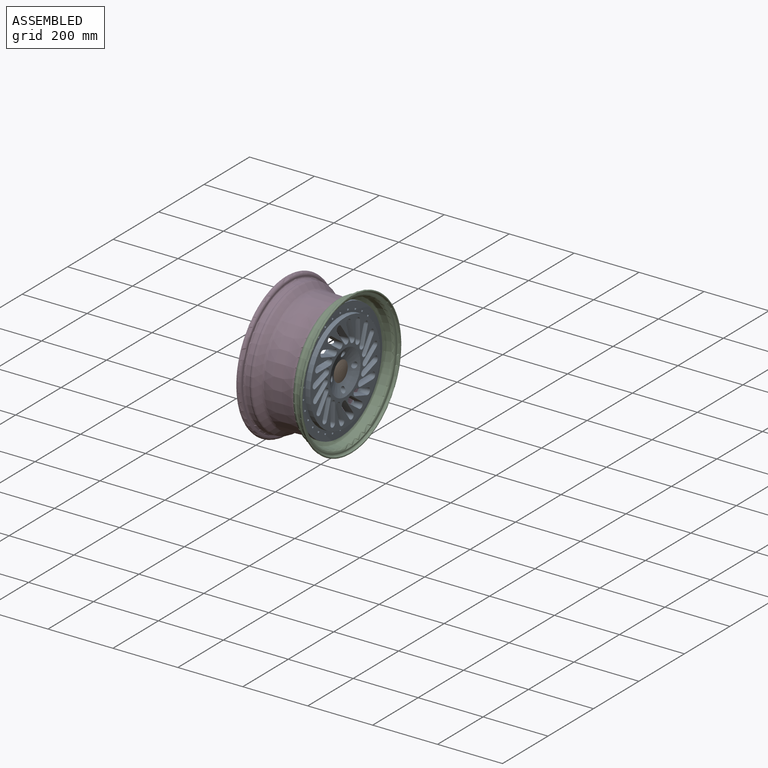
[diagram: assembled view]
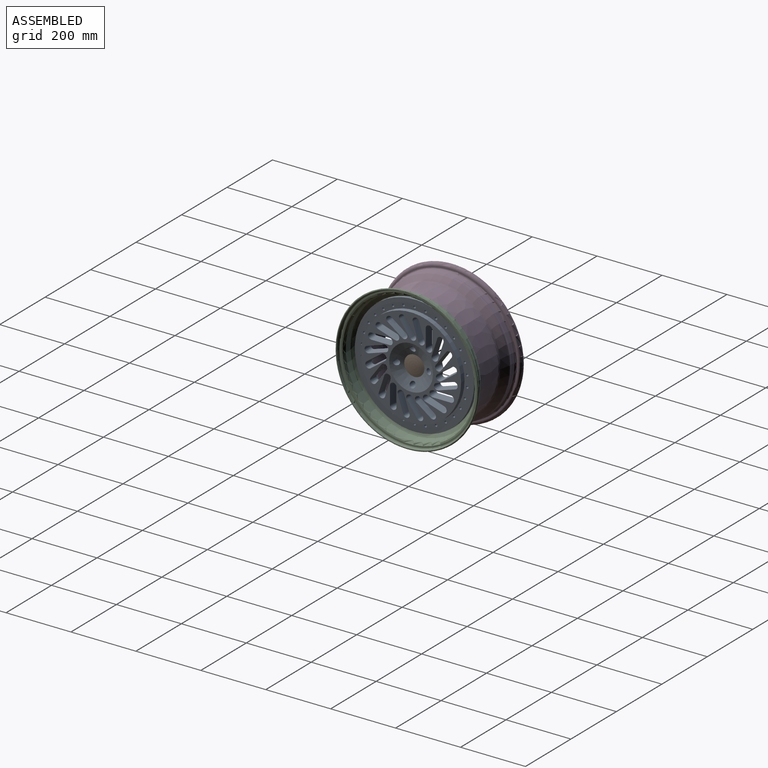
[diagram: assembled view, second angle]
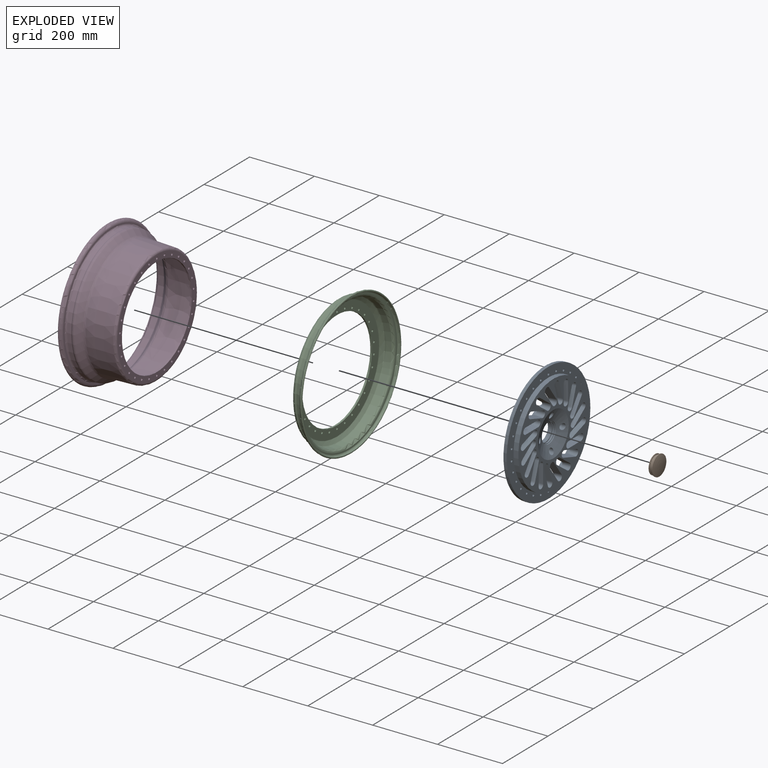
[diagram: exploded view]
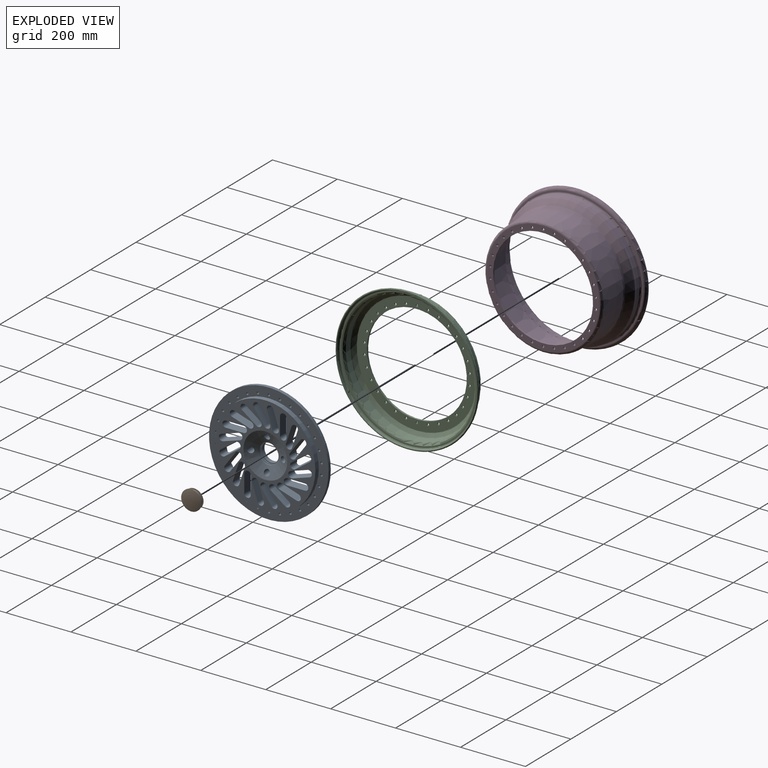
[diagram: exploded view, second angle]
ASSEMBLY  parts=4 mates=3
PART A: 144 faces, bbox 368x37x368 mm
  f0: plane 308x308mm, normal (0,1,0), area 31737mm2, adj f2,f5,f64,f65,f66,f67,f68,f69
  f1: plane 290x290mm, normal (0,-1,0), area 26986.4mm2, adj f12,f13,f64,f65,f66,f67,f68,f69
  f2: cone r=31mm half-angle=69deg, axis (0,1,0), area 11006.6mm2, adj f0,f4,f52,f55,f58,f61
  f3: torus R=30mm, axis (0,1,0), area 302.4mm2, adj f4,f21
  f4: cylinder r=31mm len=62mm, axis (0,1,0), area 389.6mm2, adj f2,f3
  f5: cylinder r=154mm len=308mm, axis (0,1,0), area 14514.2mm2, adj f0,f6
  f6: plane 368x368mm, normal (0,1,0), area 30634.3mm2, adj f5,f7,f22,f23,f24,f25,f26,f27
  f7: cylinder r=184mm len=368mm, axis (0,1,0), area 11561.1mm2, adj f6,f8
  f8: plane 368x368mm, normal (0,-1,0), area 30634.3mm2, adj f7,f9,f22,f23,f24,f25,f26,f27
  f9: cylinder r=154mm len=308mm, axis (0,1,0), area 11417.8mm2, adj f8,f10
  f10: plane 308x308mm, normal (0,-1,0), area 5692.6mm2, adj f9,f11
  f11: cylinder r=148mm len=296mm, axis (0,1,0), area 8183.2mm2, adj f10,f12
  f12: torus R=145mm, axis (0,1,0), area 4349.8mm2, adj f1,f11
  f13: torus R=75.5mm, axis (0,1,0), area 2178.9mm2, adj f1,f14
  f14: cylinder r=72.5mm len=145mm, axis (0,1,0), area 4099.8mm2, adj f13,f15
  f15: plane 145x145mm, normal (0,-1,0), area 13367.2mm2, adj f14,f16,f54,f57,f60,f63
  f16: cylinder r=28.85mm len=57.7mm, axis (0,1,0), area 2247.7mm2, adj f15,f17
  f17: plane 62.9x62.9mm, normal (0,1,0), area 492.5mm2, adj f16,f18
  f18: cylinder r=31.45mm len=62.9mm, axis (0,1,0), area 1027.6mm2, adj f17,f19
  f19: plane 62.9x62.9mm, normal (0,-1,0), area 492.5mm2, adj f18,f20
  f20: cylinder r=28.85mm len=57.7mm, axis (0,1,0), area 435mm2, adj f19,f21
  f21: plane 60x60mm, normal (0,1,0), area 212.6mm2, adj f3,f20
  f22: cylinder r=3.6mm len=10mm, axis (0,-1,0), area 226.2mm2, adj f6,f8
  f23: cylinder r=3.6mm len=10mm, axis (0,-1,0), area 226.2mm2, adj f6,f8
  f24: cylinder r=3.6mm len=10mm, axis (0,-1,0), area 226.2mm2, adj f6,f8
  f25: cylinder r=3.6mm len=10mm, axis (0,-1,0), area 226.2mm2, adj f6,f8
  f26: cylinder r=3.6mm len=10mm, axis (0,-1,0), area 226.2mm2, adj f6,f8
  f27: cylinder r=3.6mm len=10mm, axis (0,-1,0), area 226.2mm2, adj f6,f8
  f28: cylinder r=3.6mm len=10mm, axis (0,-1,0), area 226.2mm2, adj f6,f8
  f29: cylinder r=3.6mm len=10mm, axis (0,-1,0), area 226.2mm2, adj f6,f8
  f30: cylinder r=3.6mm len=10mm, axis (0,-1,0), area 226.2mm2, adj f6,f8
  f31: cylinder r=3.6mm len=10mm, axis (0,-1,0), area 226.2mm2, adj f6,f8
  f32: cylinder r=3.6mm len=10mm, axis (0,-1,0), area 226.2mm2, adj f6,f8
  f33: cylinder r=3.6mm len=10mm, axis (0,-1,0), area 226.2mm2, adj f6,f8
  f34: cylinder r=3.6mm len=10mm, axis (0,-1,0), area 226.2mm2, adj f6,f8
  f35: cylinder r=3.6mm len=10mm, axis (0,-1,0), area 226.2mm2, adj f6,f8
  f36: cylinder r=3.6mm len=10mm, axis (0,-1,0), area 226.2mm2, adj f6,f8
  f37: cylinder r=3.6mm len=10mm, axis (0,-1,0), area 226.2mm2, adj f6,f8
  f38: cylinder r=3.6mm len=10mm, axis (0,-1,0), area 226.2mm2, adj f6,f8
  f39: cylinder r=3.6mm len=10mm, axis (0,-1,0), area 226.2mm2, adj f6,f8
  f40: cylinder r=3.6mm len=10mm, axis (0,-1,0), area 226.2mm2, adj f6,f8
  f41: cylinder r=3.6mm len=10mm, axis (0,-1,0), area 226.2mm2, adj f6,f8
  f42: cylinder r=3.6mm len=10mm, axis (0,-1,0), area 226.2mm2, adj f6,f8
  f43: cylinder r=3.6mm len=10mm, axis (0,-1,0), area 226.2mm2, adj f6,f8
  f44: cylinder r=3.6mm len=10mm, axis (0,-1,0), area 226.2mm2, adj f6,f8
  f45: cylinder r=3.6mm len=10mm, axis (0,-1,0), area 226.2mm2, adj f6,f8
  f46: cylinder r=3.6mm len=10mm, axis (0,-1,0), area 226.2mm2, adj f6,f8
  f47: cylinder r=3.6mm len=10mm, axis (0,-1,0), area 226.2mm2, adj f6,f8
  f48: cylinder r=3.6mm len=10mm, axis (0,-1,0), area 226.2mm2, adj f6,f8
  f49: cylinder r=3.6mm len=10mm, axis (0,-1,0), area 226.2mm2, adj f6,f8
  f50: cylinder r=3.6mm len=10mm, axis (0,-1,0), area 226.2mm2, adj f6,f8
  f51: cylinder r=3.6mm len=10mm, axis (0,-1,0), area 226.2mm2, adj f6,f8
  f52: cylinder r=9mm len=23.41mm, axis (0,1,0), area 1137.4mm2, adj f2,f53
  f53: cone r=6.5mm half-angle=30deg, axis (0,1,0), area 243.5mm2, adj f52,f54
  f54: cylinder r=6.5mm len=13mm, axis (0,1,0), area 245mm2, adj f15,f53
  f55: cylinder r=9mm len=23.41mm, axis (0,1,0), area 1137.4mm2, adj f2,f56
  f56: cone r=6.5mm half-angle=30deg, axis (0,1,0), area 243.5mm2, adj f55,f57
  f57: cylinder r=6.5mm len=13mm, axis (0,1,0), area 245mm2, adj f15,f56
  f58: cylinder r=9mm len=23.41mm, axis (0,1,0), area 1137.4mm2, adj f2,f59
  f59: cone r=6.5mm half-angle=30deg, axis (0,1,0), area 243.5mm2, adj f58,f60
  f60: cylinder r=6.5mm len=13mm, axis (0,1,0), area 245mm2, adj f15,f59
  f61: cylinder r=9mm len=23.41mm, axis (0,1,0), area 1137.4mm2, adj f2,f62
  f62: cone r=6.5mm half-angle=30deg, axis (0,1,0), area 243.5mm2, adj f61,f63
  f63: cylinder r=6.5mm len=13mm, axis (0,1,0), area 245mm2, adj f15,f62
  f64: plane 55.43x25mm, normal (-1,0.09,0), area 1391mm2, adj f0,f1,f65,f67
  f65: cone r=10mm half-angle=5deg, axis (0,1,0), area 702.2mm2, adj f0,f1,f64,f66
  f66: plane 55.43x25mm, normal (1,0.09,0), area 1391mm2, adj f0,f1,f65,f67
  f67: cone r=10mm half-angle=5deg, axis (0,1,0), area 702.2mm2, adj f0,f1,f64,f66
  f68: plane 53.39x25mm, normal (-0.95,0.09,0.31), area 1391mm2, adj f0,f1,f69,f71
  f69: cone r=10mm half-angle=5deg, axis (0,1,0), area 702.2mm2, adj f0,f1,f68,f70
  f70: plane 53.39x25mm, normal (0.95,0.09,-0.31), area 1391mm2, adj f0,f1,f69,f71
  f71: cone r=10mm half-angle=5deg, axis (0,1,0), area 702.2mm2, adj f0,f1,f68,f70
  f72: plane 46.13x34.35mm, normal (-0.81,0.09,0.59), area 1391mm2, adj f0,f1,f73,f75
  f73: cone r=10mm half-angle=5deg, axis (0,1,0), area 702.2mm2, adj f0,f1,f72,f74
  f74: plane 46.13x34.35mm, normal (0.81,0.09,-0.59), area 1391mm2, adj f0,f1,f73,f75
  f75: cone r=10mm half-angle=5deg, axis (0,1,0), area 702.2mm2, adj f0,f1,f72,f74
  f76: plane 46.13x34.35mm, normal (-0.59,0.09,0.81), area 1391mm2, adj f0,f1,f77,f79
  f77: cone r=10mm half-angle=5deg, axis (0,1,0), area 702.2mm2, adj f0,f1,f76,f78
  f78: plane 46.13x34.35mm, normal (0.59,0.09,-0.81), area 1391mm2, adj f0,f1,f77,f79
  f79: cone r=10mm half-angle=5deg, axis (0,1,0), area 702.2mm2, adj f0,f1,f76,f78
  f80: plane 53.39x25mm, normal (-0.31,0.09,0.95), area 1391mm2, adj f0,f1,f81,f83
  f81: cone r=10mm half-angle=5deg, axis (0,1,0), area 702.2mm2, adj f0,f1,f80,f82
  f82: plane 53.39x25mm, normal (0.31,0.09,-0.95), area 1391mm2, adj f0,f1,f81,f83
  f83: cone r=10mm half-angle=5deg, axis (0,1,0), area 702.2mm2, adj f0,f1,f80,f82
  f84: plane 55.43x25mm, normal (0,0.09,1), area 1391mm2, adj f0,f1,f85,f87
  f85: cone r=10mm half-angle=5deg, axis (0,1,0), area 702.2mm2, adj f0,f1,f84,f86
  f86: plane 55.43x25mm, normal (0,0.09,-1), area 1391mm2, adj f0,f1,f85,f87
  f87: cone r=10mm half-angle=5deg, axis (0,1,0), area 702.2mm2, adj f0,f1,f84,f86
  f88: plane 53.39x25mm, normal (0.31,0.09,0.95), area 1391mm2, adj f0,f1,f89,f91
  f89: cone r=10mm half-angle=5deg, axis (0,1,0), area 702.2mm2, adj f0,f1,f88,f90
  f90: plane 53.39x25mm, normal (-0.31,0.09,-0.95), area 1391mm2, adj f0,f1,f89,f91
  f91: cone r=10mm half-angle=5deg, axis (0,1,0), area 702.2mm2, adj f0,f1,f88,f90
  f92: plane 46.13x34.35mm, normal (0.59,0.09,0.81), area 1391mm2, adj f0,f1,f93,f95
  f93: cone r=10mm half-angle=5deg, axis (0,1,0), area 702.2mm2, adj f0,f1,f92,f94
  f94: plane 46.13x34.35mm, normal (-0.59,0.09,-0.81), area 1391mm2, adj f0,f1,f93,f95
  f95: cone r=10mm half-angle=5deg, axis (0,1,0), area 702.2mm2, adj f0,f1,f92,f94
  f96: plane 46.13x34.35mm, normal (0.81,0.09,0.59), area 1391mm2, adj f0,f1,f97,f99
  f97: cone r=10mm half-angle=5deg, axis (0,1,0), area 702.2mm2, adj f0,f1,f96,f98
  f98: plane 46.13x34.35mm, normal (-0.81,0.09,-0.59), area 1391mm2, adj f0,f1,f97,f99
  f99: cone r=10mm half-angle=5deg, axis (0,1,0), area 702.2mm2, adj f0,f1,f96,f98
  f100: plane 53.39x25mm, normal (0.95,0.09,0.31), area 1391mm2, adj f0,f1,f101,f103
  f101: cone r=10mm half-angle=5deg, axis (0,1,0), area 702.2mm2, adj f0,f1,f100,f102
  f102: plane 53.39x25mm, normal (-0.95,0.09,-0.31), area 1391mm2, adj f0,f1,f101,f103
  f103: cone r=10mm half-angle=5deg, axis (0,1,0), area 702.2mm2, adj f0,f1,f100,f102
  f104: plane 55.43x25mm, normal (1,0.09,0), area 1391mm2, adj f0,f1,f105,f107
  f105: cone r=10mm half-angle=5deg, axis (0,1,0), area 702.2mm2, adj f0,f1,f104,f106
  f106: plane 55.43x25mm, normal (-1,0.09,0), area 1391mm2, adj f0,f1,f105,f107
  f107: cone r=10mm half-angle=5deg, axis (0,1,0), area 702.2mm2, adj f0,f1,f104,f106
  f108: plane 53.39x25mm, normal (0.95,0.09,-0.31), area 1391mm2, adj f0,f1,f109,f111
  f109: cone r=10mm half-angle=5deg, axis (0,1,0), area 702.2mm2, adj f0,f1,f108,f110
  f110: plane 53.39x25mm, normal (-0.95,0.09,0.31), area 1391mm2, adj f0,f1,f109,f111
  f111: cone r=10mm half-angle=5deg, axis (0,1,0), area 702.2mm2, adj f0,f1,f108,f110
  f112: plane 46.13x34.35mm, normal (0.81,0.09,-0.59), area 1391mm2, adj f0,f1,f113,f115
  f113: cone r=10mm half-angle=5deg, axis (0,1,0), area 702.2mm2, adj f0,f1,f112,f114
  f114: plane 46.13x34.35mm, normal (-0.81,0.09,0.59), area 1391mm2, adj f0,f1,f113,f115
  f115: cone r=10mm half-angle=5deg, axis (0,1,0), area 702.2mm2, adj f0,f1,f112,f114
  f116: plane 46.13x34.35mm, normal (0.59,0.09,-0.81), area 1391mm2, adj f0,f1,f117,f119
  f117: cone r=10mm half-angle=5deg, axis (0,1,0), area 702.2mm2, adj f0,f1,f116,f118
  f118: plane 46.13x34.35mm, normal (-0.59,0.09,0.81), area 1391mm2, adj f0,f1,f117,f119
  f119: cone r=10mm half-angle=5deg, axis (0,1,0), area 702.2mm2, adj f0,f1,f116,f118
  f120: plane 53.39x25mm, normal (0.31,0.09,-0.95), area 1391mm2, adj f0,f1,f121,f123
  f121: cone r=10mm half-angle=5deg, axis (0,1,0), area 702.2mm2, adj f0,f1,f120,f122
  f122: plane 53.39x25mm, normal (-0.31,0.09,0.95), area 1391mm2, adj f0,f1,f121,f123
  f123: cone r=10mm half-angle=5deg, axis (0,1,0), area 702.2mm2, adj f0,f1,f120,f122
  f124: plane 55.43x25mm, normal (0,0.09,-1), area 1391mm2, adj f0,f1,f125,f127
  f125: cone r=10mm half-angle=5deg, axis (0,1,0), area 702.2mm2, adj f0,f1,f124,f126
  f126: plane 55.43x25mm, normal (0,0.09,1), area 1391mm2, adj f0,f1,f125,f127
  f127: cone r=10mm half-angle=5deg, axis (0,1,0), area 702.2mm2, adj f0,f1,f124,f126
  f128: plane 53.39x25mm, normal (-0.31,0.09,-0.95), area 1391mm2, adj f0,f1,f129,f131
  f129: cone r=10mm half-angle=5deg, axis (0,1,0), area 702.2mm2, adj f0,f1,f128,f130
  f130: plane 53.39x25mm, normal (0.31,0.09,0.95), area 1391mm2, adj f0,f1,f129,f131
  f131: cone r=10mm half-angle=5deg, axis (0,1,0), area 702.2mm2, adj f0,f1,f128,f130
  f132: plane 46.13x34.35mm, normal (-0.59,0.09,-0.81), area 1391mm2, adj f0,f1,f133,f135
  f133: cone r=10mm half-angle=5deg, axis (0,1,0), area 702.2mm2, adj f0,f1,f132,f134
  f134: plane 46.13x34.35mm, normal (0.59,0.09,0.81), area 1391mm2, adj f0,f1,f133,f135
  f135: cone r=10mm half-angle=5deg, axis (0,1,0), area 702.2mm2, adj f0,f1,f132,f134
  f136: plane 46.13x34.35mm, normal (-0.81,0.09,-0.59), area 1391mm2, adj f0,f1,f137,f139
  f137: cone r=10mm half-angle=5deg, axis (0,1,0), area 702.2mm2, adj f0,f1,f136,f138
  f138: plane 46.13x34.35mm, normal (0.81,0.09,0.59), area 1391mm2, adj f0,f1,f137,f139
  f139: cone r=10mm half-angle=5deg, axis (0,1,0), area 702.2mm2, adj f0,f1,f136,f138
  f140: plane 53.39x25mm, normal (-0.95,0.09,-0.31), area 1391mm2, adj f0,f1,f141,f143
  f141: cone r=10mm half-angle=5deg, axis (0,1,0), area 702.2mm2, adj f0,f1,f140,f142
  f142: plane 53.39x25mm, normal (0.95,0.09,0.31), area 1391mm2, adj f0,f1,f141,f143
  f143: cone r=10mm half-angle=5deg, axis (0,1,0), area 702.2mm2, adj f0,f1,f140,f142
PART B: 10 faces, bbox 67.1x16.2x67.1 mm
  f0: cylinder r=31mm len=62mm, axis (0,1,0), area 389.6mm2, adj f1,f9
  f1: sphere r=150mm, area 3052mm2, adj f0
  f2: plane 57.7x57.7mm, normal (0,-1,0), area 2614.8mm2, adj f3
  f3: cylinder r=28.85mm len=57.7mm, axis (0,1,0), area 435mm2, adj f2,f4
  f4: plane 57.7x57.7mm, normal (0,1,0), area 450.1mm2, adj f3,f5
  f5: cylinder r=26.25mm len=52.5mm, axis (0,1,0), area 857.7mm2, adj f4,f6
  f6: plane 57.7x57.7mm, normal (0,-1,0), area 450.1mm2, adj f5,f7
  f7: cylinder r=28.85mm len=57.7mm, axis (0,1,0), area 435mm2, adj f6,f8
  f8: plane 60x60mm, normal (0,-1,0), area 212.6mm2, adj f7,f9
  f9: torus R=30mm, axis (0,1,0), area 302.4mm2, adj f0,f8
PART C: 66 faces, bbox 50.1x476.5x476.5 mm
  f0: plane 429.85x429.85mm, normal (-1,0,0), area 4472.6mm2, adj f1,f2,f3,f4
  f1: torus R=211.1mm, axis (1,0,0), area 5287.2mm2, adj f0,f2,f5
  f2: torus R=211.1mm, axis (1,0,0), area 5287.2mm2, adj f0,f1,f6
  f3: torus R=207.7mm, axis (1,0,0), area 8021mm2, adj f0,f4,f7
  f4: torus R=207.7mm, axis (1,0,0), area 8021mm2, adj f0,f3,f8
  f5: cylinder r=216.1mm len=405.75mm, axis (1,0,0), area 1900.9mm2, adj f1,f6,f9
  f6: cylinder r=216.1mm len=405.75mm, axis (1,0,0), area 1900.9mm2, adj f2,f5,f10
  f7: cone r=197.55mm half-angle=5deg, axis (-1,0,0), area 12019.7mm2, adj f3,f8,f11
  f8: cone r=197.55mm half-angle=5deg, axis (-1,0,0), area 12019.7mm2, adj f4,f7,f12
  f9: torus R=216.6mm, axis (1,0,0), area 533.5mm2, adj f5,f10,f13
  f10: torus R=216.6mm, axis (1,0,0), area 533.5mm2, adj f6,f9,f13
  f11: torus R=194.56mm, axis (1,0,0), area 1717.7mm2, adj f7,f12,f14
  f12: torus R=194.56mm, axis (1,0,0), area 1717.7mm2, adj f8,f11,f15
  f13: plane 443.49x443.49mm, normal (-1,0,0), area 1637.6mm2, adj f9,f10,f16,f17
  f14: cone r=185.77mm half-angle=58deg, axis (-1,0,0), area 7348.1mm2, adj f11,f15,f18
  f15: cone r=185.77mm half-angle=58deg, axis (-1,0,0), area 7348.1mm2, adj f12,f14,f19
  f16: torus R=217.8mm, axis (1,0,0), area 2488.7mm2, adj f13,f17,f20
  f17: torus R=217.8mm, axis (1,0,0), area 2488.7mm2, adj f13,f16,f21
  f18: torus R=184.18mm, axis (1,0,0), area 973.8mm2, adj f14,f19,f22
  f19: torus R=184.18mm, axis (1,0,0), area 973.8mm2, adj f15,f18,f22
  f20: torus R=210.4mm, axis (1,0,0), area 10366.9mm2, adj f16,f21,f23
  f21: torus R=210.4mm, axis (1,0,0), area 10366.9mm2, adj f17,f20,f23
  f22: plane 373.16x373.16mm, normal (-1,0,0), area 30837.7mm2, adj f18,f19,f35,f36,f37,f38,f39,f40
  f23: plane 426.29x426.29mm, normal (1,0,0), area 4200.4mm2, adj f20,f21,f24,f25
  f24: torus R=207.2mm, axis (1,0,0), area 4569.2mm2, adj f23,f25,f26
  f25: torus R=207.2mm, axis (1,0,0), area 4569.2mm2, adj f23,f24,f27
  f26: cone r=201.32mm half-angle=5deg, axis (-1,0,0), area 7963.6mm2, adj f24,f27,f28
  f27: cone r=201.32mm half-angle=5deg, axis (-1,0,0), area 7963.6mm2, adj f25,f26,f29
  f28: torus R=195mm, axis (1,0,0), area 8487.1mm2, adj f26,f29,f30
  f29: torus R=195mm, axis (1,0,0), area 8487.1mm2, adj f27,f28,f32
  f30: cone r=184.73mm half-angle=58deg, axis (-1,0,0), area 10319.5mm2, adj f28,f32,f33
  f31: plane 371.06x371.06mm, normal (1,0,0), area 29642mm2, adj f33,f34,f35,f36,f37,f38,f39,f40
  f32: cone r=184.73mm half-angle=58deg, axis (-1,0,0), area 10319.5mm2, adj f29,f30,f34
  f33: torus R=183.14mm, axis (1,0,0), area 968.3mm2, adj f30,f31,f34
  f34: torus R=183.14mm, axis (1,0,0), area 968.3mm2, adj f31,f32,f33
  f35: cylinder r=154mm len=308mm, axis (1,0,0), area 5418.6mm2, adj f22,f31
  f36: cylinder r=3.6mm len=7.2mm, axis (1,0,0), area 126.7mm2, adj f22,f31
  f37: cylinder r=3.6mm len=7.2mm, axis (1,0,0), area 126.7mm2, adj f22,f31
  f38: cylinder r=3.6mm len=7.2mm, axis (1,0,0), area 126.7mm2, adj f22,f31
  f39: cylinder r=3.6mm len=7.2mm, axis (1,0,0), area 126.7mm2, adj f22,f31
  f40: cylinder r=3.6mm len=7.2mm, axis (1,0,0), area 126.7mm2, adj f22,f31
  f41: cylinder r=3.6mm len=7.2mm, axis (1,0,0), area 126.7mm2, adj f22,f31
  f42: cylinder r=3.6mm len=7.2mm, axis (1,0,0), area 126.7mm2, adj f22,f31
  f43: cylinder r=3.6mm len=7.2mm, axis (1,0,0), area 126.7mm2, adj f22,f31
  f44: cylinder r=3.6mm len=7.2mm, axis (1,0,0), area 126.7mm2, adj f22,f31
  f45: cylinder r=3.6mm len=7.2mm, axis (1,0,0), area 126.7mm2, adj f22,f31
  f46: cylinder r=3.6mm len=7.2mm, axis (1,0,0), area 126.7mm2, adj f22,f31
  f47: cylinder r=3.6mm len=7.2mm, axis (1,0,0), area 126.7mm2, adj f22,f31
  f48: cylinder r=3.6mm len=7.2mm, axis (1,0,0), area 126.7mm2, adj f22,f31
  f49: cylinder r=3.6mm len=7.2mm, axis (1,0,0), area 126.7mm2, adj f22,f31
  f50: cylinder r=3.6mm len=7.2mm, axis (1,0,0), area 126.7mm2, adj f22,f31
  f51: cylinder r=3.6mm len=7.2mm, axis (1,0,0), area 126.7mm2, adj f22,f31
  f52: cylinder r=3.6mm len=7.2mm, axis (1,0,0), area 126.7mm2, adj f22,f31
  f53: cylinder r=3.6mm len=7.2mm, axis (1,0,0), area 126.7mm2, adj f22,f31
  f54: cylinder r=3.6mm len=7.2mm, axis (1,0,0), area 126.7mm2, adj f22,f31
  f55: cylinder r=3.6mm len=7.2mm, axis (1,0,0), area 126.7mm2, adj f22,f31
  f56: cylinder r=3.6mm len=7.2mm, axis (1,0,0), area 126.7mm2, adj f22,f31
  f57: cylinder r=3.6mm len=7.2mm, axis (1,0,0), area 126.7mm2, adj f22,f31
  f58: cylinder r=3.6mm len=7.2mm, axis (1,0,0), area 126.7mm2, adj f22,f31
  f59: cylinder r=3.6mm len=7.2mm, axis (1,0,0), area 126.7mm2, adj f22,f31
  f60: cylinder r=3.6mm len=7.2mm, axis (1,0,0), area 126.7mm2, adj f22,f31
  f61: cylinder r=3.6mm len=7.2mm, axis (1,0,0), area 126.7mm2, adj f22,f31
  f62: cylinder r=3.6mm len=7.2mm, axis (1,0,0), area 126.7mm2, adj f22,f31
  f63: cylinder r=3.6mm len=7.2mm, axis (1,0,0), area 126.7mm2, adj f22,f31
  f64: cylinder r=3.6mm len=7.2mm, axis (1,0,0), area 126.7mm2, adj f22,f31
  f65: cylinder r=3.6mm len=7.2mm, axis (1,0,0), area 126.7mm2, adj f22,f31
PART D: 76 faces, bbox 151.7x476.5x476.5 mm
  f0: torus R=216.6mm, axis (1,0,0), area 533.7mm2, adj f1,f2,f3
  f1: torus R=216.6mm, axis (1,0,0), area 533.7mm2, adj f0,f2,f4
  f2: plane 444.1x444.1mm, normal (-1,0,0), area 2048.1mm2, adj f0,f1,f5,f6
  f3: cylinder r=216.1mm len=405.75mm, axis (1,0,0), area 1900.9mm2, adj f0,f4,f7
  f4: cylinder r=216.1mm len=405.75mm, axis (1,0,0), area 1900.9mm2, adj f1,f3,f8
  f5: torus R=218.1mm, axis (1,0,0), area 2165.1mm2, adj f2,f6,f9
  f6: torus R=218.1mm, axis (1,0,0), area 2165.1mm2, adj f2,f5,f10
  f7: torus R=211.1mm, axis (1,0,0), area 5287.2mm2, adj f3,f8,f11
  f8: torus R=211.1mm, axis (1,0,0), area 5287.2mm2, adj f4,f7,f11
  f9: cylinder r=220.1mm len=413.26mm, axis (1,0,0), area 207.4mm2, adj f5,f10,f12
  f10: cylinder r=220.1mm len=413.26mm, axis (1,0,0), area 207.4mm2, adj f6,f9,f13
  f11: plane 429.85x429.85mm, normal (-1,0,0), area 4865.7mm2, adj f7,f8,f14,f15
  f12: torus R=210.4mm, axis (1,0,0), area 10366.9mm2, adj f9,f13,f16
  f13: torus R=210.4mm, axis (1,0,0), area 10366.9mm2, adj f10,f12,f16
  f14: torus R=207.4mm, axis (1,0,0), area 8009mm2, adj f11,f15,f17
  f15: torus R=207.4mm, axis (1,0,0), area 8009mm2, adj f11,f14,f18
  f16: plane 428.42x428.42mm, normal (1,0,0), area 3961.6mm2, adj f12,f13,f19,f20
  f17: cone r=197.29mm half-angle=5deg, axis (-1,0,0), area 11718mm2, adj f14,f18,f21
  f18: cone r=197.29mm half-angle=5deg, axis (-1,0,0), area 11718mm2, adj f15,f17,f22
  f19: torus R=207.38mm, axis (1,0,0), area 4761mm2, adj f16,f20,f23
  f20: torus R=207.38mm, axis (1,0,0), area 4761mm2, adj f16,f19,f24
  f21: torus R=193.31mm, axis (1,0,0), area 1675.3mm2, adj f17,f22,f25
  f22: torus R=193.31mm, axis (1,0,0), area 1675.3mm2, adj f18,f21,f26
  f23: cone r=201.31mm half-angle=5deg, axis (-1,0,0), area 7965.2mm2, adj f19,f24,f27
  f24: cone r=201.31mm half-angle=5deg, axis (-1,0,0), area 7965.2mm2, adj f20,f23,f28
  f25: cone r=184.65mm half-angle=43.8deg, axis (-1,0,0), area 9978.6mm2, adj f21,f26,f29
  f26: cone r=184.65mm half-angle=43.8deg, axis (-1,0,0), area 9978.6mm2, adj f22,f25,f30
  f27: torus R=195mm, axis (1,0,0), area 7257.6mm2, adj f23,f28,f31
  f28: torus R=195mm, axis (1,0,0), area 7257.6mm2, adj f24,f27,f32
  f29: torus R=196.2mm, axis (1,0,0), area 6665.6mm2, adj f25,f30,f33
  f30: torus R=196.2mm, axis (1,0,0), area 6665.6mm2, adj f26,f29,f34
  f31: cone r=186.96mm half-angle=43.8deg, axis (-1,0,0), area 12156.7mm2, adj f27,f32,f35
  f32: cone r=186.96mm half-angle=43.8deg, axis (-1,0,0), area 12156.7mm2, adj f28,f31,f36
  f33: cone r=177.36mm half-angle=2deg, axis (-1,0,0), area 45795.1mm2, adj f29,f34,f37
  f34: cone r=177.36mm half-angle=2deg, axis (-1,0,0), area 45795.1mm2, adj f30,f33,f38
  f35: torus R=194.18mm, axis (1,0,0), area 4243.6mm2, adj f31,f36,f39
  f36: torus R=194.18mm, axis (1,0,0), area 4243.6mm2, adj f32,f35,f40
  f37: torus R=172.36mm, axis (1,0,0), area 4234.2mm2, adj f33,f38,f41
  f38: torus R=172.36mm, axis (1,0,0), area 4234.2mm2, adj f34,f37,f41
  f39: cone r=181.27mm half-angle=2deg, axis (-1,0,0), area 47941.6mm2, adj f35,f40,f42
  f40: cone r=181.27mm half-angle=2deg, axis (-1,0,0), area 47941.6mm2, adj f36,f39,f43
  f41: plane 350.97x350.97mm, normal (-1,0,0), area 17607.7mm2, adj f37,f38,f45,f46,f47,f48,f49,f50
  f42: torus R=173.27mm, axis (1,0,0), area 6882.6mm2, adj f39,f43,f44
  f43: torus R=173.27mm, axis (1,0,0), area 6882.6mm2, adj f40,f42,f44
  f44: plane 352.83x352.82mm, normal (1,0,0), area 18595.7mm2, adj f42,f43,f45,f46,f47,f48,f49,f50
  f45: cylinder r=154mm len=308mm, axis (1,0,0), area 5418.6mm2, adj f41,f44
  f46: cylinder r=3.6mm len=7.2mm, axis (1,0,0), area 126.7mm2, adj f41,f44
  f47: cylinder r=3.6mm len=7.2mm, axis (1,0,0), area 126.7mm2, adj f41,f44
  f48: cylinder r=3.6mm len=7.2mm, axis (1,0,0), area 126.7mm2, adj f41,f44
  f49: cylinder r=3.6mm len=7.2mm, axis (1,0,0), area 126.7mm2, adj f41,f44
  f50: cylinder r=3.6mm len=7.2mm, axis (1,0,0), area 126.7mm2, adj f41,f44
  f51: cylinder r=3.6mm len=7.2mm, axis (1,0,0), area 126.7mm2, adj f41,f44
  f52: cylinder r=3.6mm len=7.2mm, axis (1,0,0), area 126.7mm2, adj f41,f44
  f53: cylinder r=3.6mm len=7.2mm, axis (1,0,0), area 126.7mm2, adj f41,f44
  f54: cylinder r=3.6mm len=7.2mm, axis (1,0,0), area 126.7mm2, adj f41,f44
  f55: cylinder r=3.6mm len=7.2mm, axis (1,0,0), area 126.7mm2, adj f41,f44
  f56: cylinder r=3.6mm len=7.2mm, axis (1,0,0), area 126.7mm2, adj f41,f44
  f57: cylinder r=3.6mm len=7.2mm, axis (1,0,0), area 126.7mm2, adj f41,f44
  f58: cylinder r=3.6mm len=7.2mm, axis (1,0,0), area 126.7mm2, adj f41,f44
  f59: cylinder r=3.6mm len=7.2mm, axis (1,0,0), area 126.7mm2, adj f41,f44
  f60: cylinder r=3.6mm len=7.2mm, axis (1,0,0), area 126.7mm2, adj f41,f44
  f61: cylinder r=3.6mm len=7.2mm, axis (1,0,0), area 126.7mm2, adj f41,f44
  f62: cylinder r=3.6mm len=7.2mm, axis (1,0,0), area 126.7mm2, adj f41,f44
  f63: cylinder r=3.6mm len=7.2mm, axis (1,0,0), area 126.7mm2, adj f41,f44
  f64: cylinder r=3.6mm len=7.2mm, axis (1,0,0), area 126.7mm2, adj f41,f44
  f65: cylinder r=3.6mm len=7.2mm, axis (1,0,0), area 126.7mm2, adj f41,f44
  f66: cylinder r=3.6mm len=7.2mm, axis (1,0,0), area 126.7mm2, adj f41,f44
  f67: cylinder r=3.6mm len=7.2mm, axis (1,0,0), area 126.7mm2, adj f41,f44
  f68: cylinder r=3.6mm len=7.2mm, axis (1,0,0), area 126.7mm2, adj f41,f44
  f69: cylinder r=3.6mm len=7.2mm, axis (1,0,0), area 126.7mm2, adj f41,f44
  f70: cylinder r=3.6mm len=7.2mm, axis (1,0,0), area 126.7mm2, adj f41,f44
  f71: cylinder r=3.6mm len=7.2mm, axis (1,0,0), area 126.7mm2, adj f41,f44
  f72: cylinder r=3.6mm len=7.2mm, axis (1,0,0), area 126.7mm2, adj f41,f44
  f73: cylinder r=3.6mm len=7.2mm, axis (1,0,0), area 126.7mm2, adj f41,f44
  f74: cylinder r=3.6mm len=7.2mm, axis (1,0,0), area 126.7mm2, adj f41,f44
  f75: cylinder r=3.6mm len=7.2mm, axis (1,0,0), area 126.7mm2, adj f41,f44
PLACE A rot(axis=(-0.58,-0.58,-0.58),120deg) t=(781.79,880.81,841.87)mm
PLACE B rot(axis=(0.05,0.05,-1),90.2deg) t=(791.79,880.81,841.87)mm
PLACE C rot(axis=(0,-1,-0.05),180deg) t=(788.19,880.81,841.87)mm
PLACE D rot(axis=(1,0,0),6deg) t=(788.19,880.81,841.87)mm
MATE cylindrical B.f0 <-> A.f2  axis (-1,0,0) through (801.79,880.81,841.87)mm
MATE cylindrical C.f1 <-> D.f0  axis (-1,0,0) through (788.19,880.81,841.87)mm
MATE cylindrical A.f2 <-> C.f1  axis (-1,0,0) through (793.79,880.81,841.87)mm
